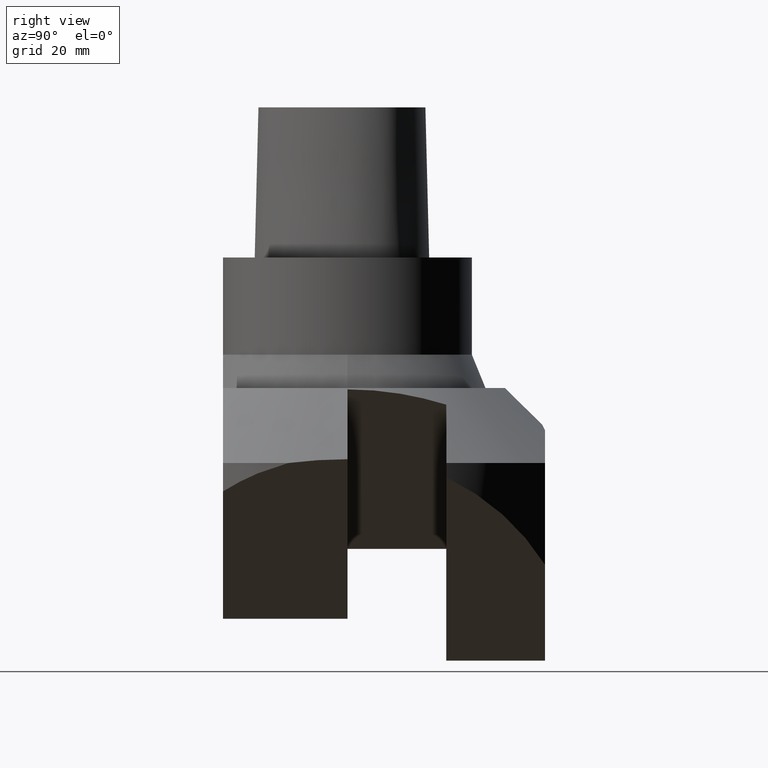
[diagram: clean part render]
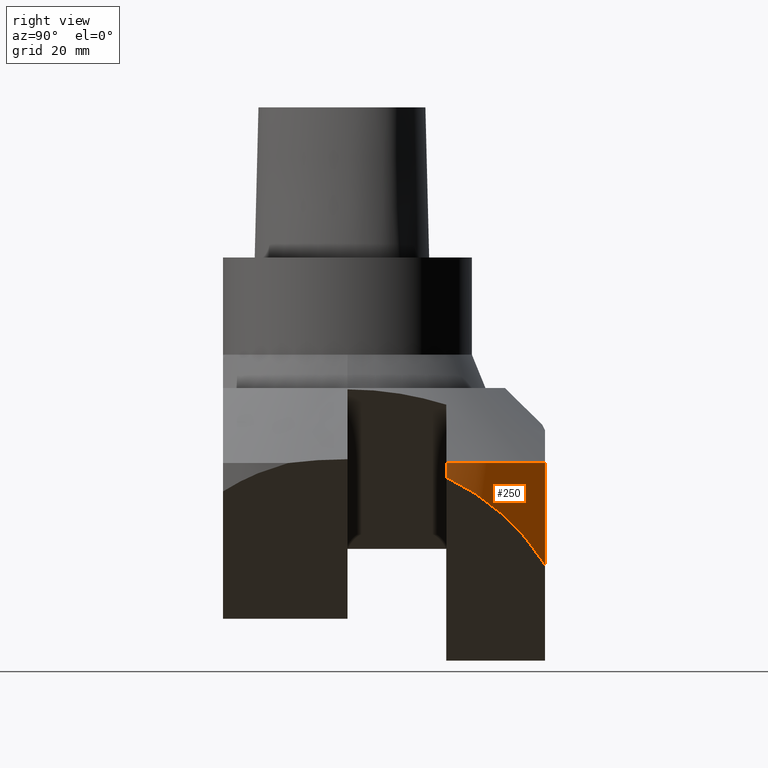
[diagram: same view with one face highlighted and labeled with its STEP entity id]
A machine part, right view. The second image highlights one B-rep face of the part: STEP entity #250.
In plain terms, the highlighted cylindrical surface (partial cylindrical patch) has radius 59 mm, axis along (0, -0, -1).
Its self-contained STEP definition (entity closure, byte-faithful):
#164=EDGE_CURVE('240[2]',#408,#402,#409,.F.);
#192=EDGE_CURVE('240[2]',#402,#446,#447,.T.);
#217=EDGE_CURVE('240[2]',#480,#446,#481,.F.);
#250=ADVANCED_FACE('240[2]',(#522),#523,.T.);
#286=EDGE_CURVE('240[2]',#408,#480,#567,.F.);
#402=VERTEX_POINT('',#897);
#408=VERTEX_POINT('',#907);
#409=LINE('',#908,#909);
#446=VERTEX_POINT('',#964);
#447=ELLIPSE('',#965,83.4386001800142,59.000000000001);
#480=VERTEX_POINT('',#1013);
#481=LINE('',#1014,#1015);
#522=FACE_OUTER_BOUND('',#1126,.T.);
#523=CYLINDRICAL_SURFACE('',#1127,59.000000000001);
#567=CIRCLE('',#1227,59.000000000001);
#897=CARTESIAN_POINT('',(53.4415568635508,25.0,-55.6296644520632));
#907=CARTESIAN_POINT('',(53.4415568635508,25.0,-52.0000003175885));
#908=CARTESIAN_POINT('',(53.4415568635507,25.0,-21.2250202537595));
#909=VECTOR('',#1350,100.0);
#964=CARTESIAN_POINT('',(31.3209195267338,50.0,-77.7503017888804));
#965=AXIS2_PLACEMENT_3D('',#1393,#1394,#1395);
#1013=CARTESIAN_POINT('',(31.3209195267337,50.0,-52.0000003175885));
#1014=CARTESIAN_POINT('',(31.3209195267336,50.0,-21.2250202537595));
#1015=VECTOR('',#1440,100.0);
#1126=EDGE_LOOP('',(#1490,#1491,#1492,#1493));
#1127=AXIS2_PLACEMENT_3D('',#1494,#1495,#1496);
#1227=AXIS2_PLACEMENT_3D('',#1550,#1551,#1552);
#1350=DIRECTION('',(-2.28198881722218E-015,6.12323399573681E-017,1.0));
#1393=CARTESIAN_POINT('',(2.48899307322997E-013,-6.67868610316302E-015,-109.071221315614));
#1394=DIRECTION('',(-0.70710678118655,1.73191211247099E-016,0.707106781186545));
#1395=DIRECTION('',(0.707106781186545,-8.65956056235486E-017,0.70710678118655));
#1440=DIRECTION('',(-2.28198881722218E-015,6.12323399573681E-017,1.0));
#1490=ORIENTED_EDGE('',*,*,#286,.F.);
#1491=ORIENTED_EDGE('',*,*,#164,.T.);
#1492=ORIENTED_EDGE('',*,*,#192,.T.);
#1493=ORIENTED_EDGE('',*,*,#217,.F.);
#1494=CARTESIAN_POINT('',(4.8435258864394E-014,-1.29965765578023E-015,-21.2250202537596));
#1495=DIRECTION('',(2.28198881722218E-015,-6.12323399573681E-017,-1.0));
#1496=DIRECTION('',(-1.0,1.83697019872103E-016,-2.28198881722218E-015));
#1550=CARTESIAN_POINT('',(1.18663419220287E-013,-3.18408169722983E-015,-52.0000003175886));
#1551=DIRECTION('',(2.28198881722218E-015,-6.12323399573681E-017,-1.0));
#1552=DIRECTION('',(-1.0,1.83697019872103E-016,-2.28198881722218E-015));